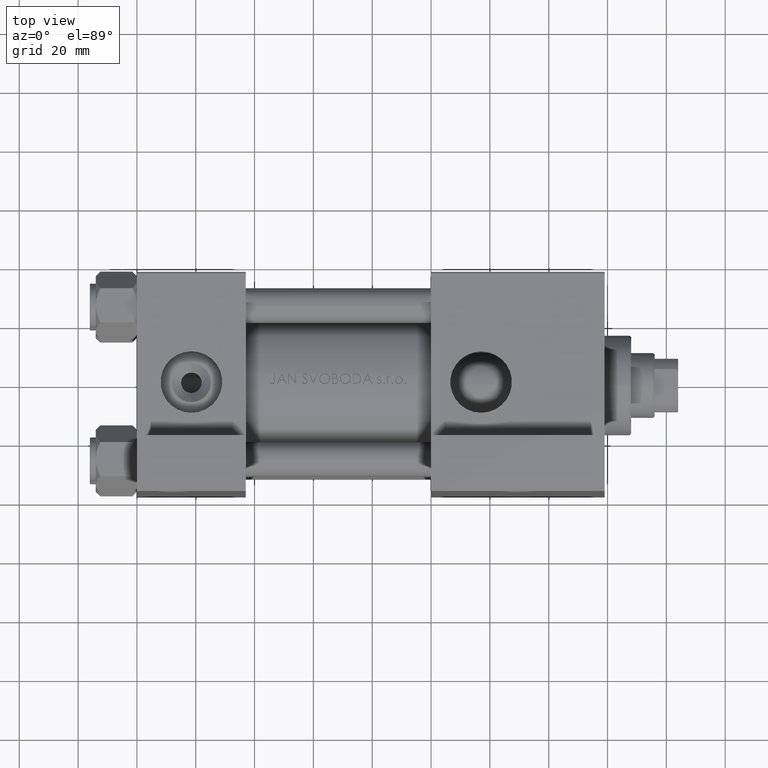
[diagram: clean part render]
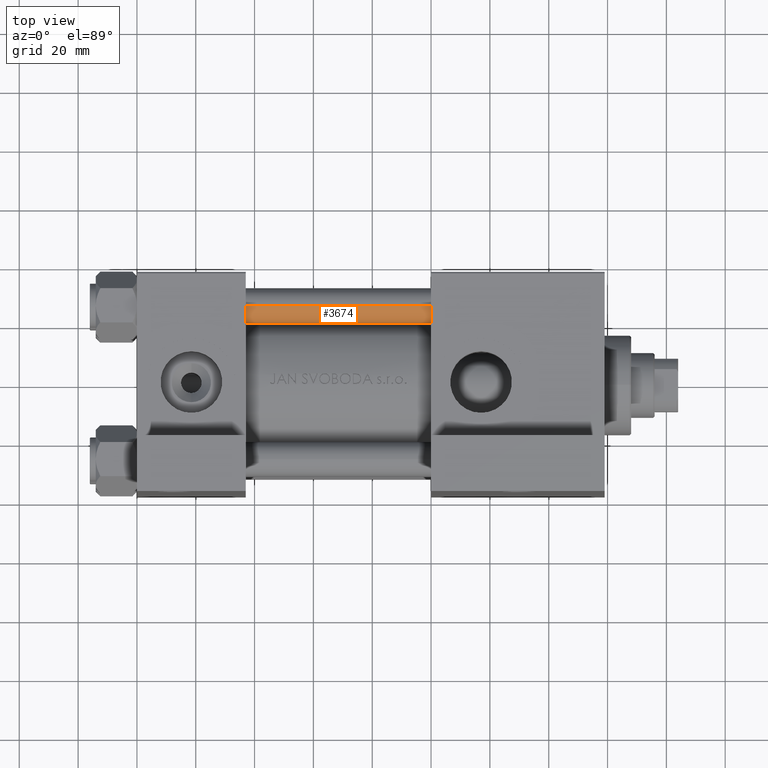
[diagram: same view with one face highlighted and labeled with its STEP entity id]
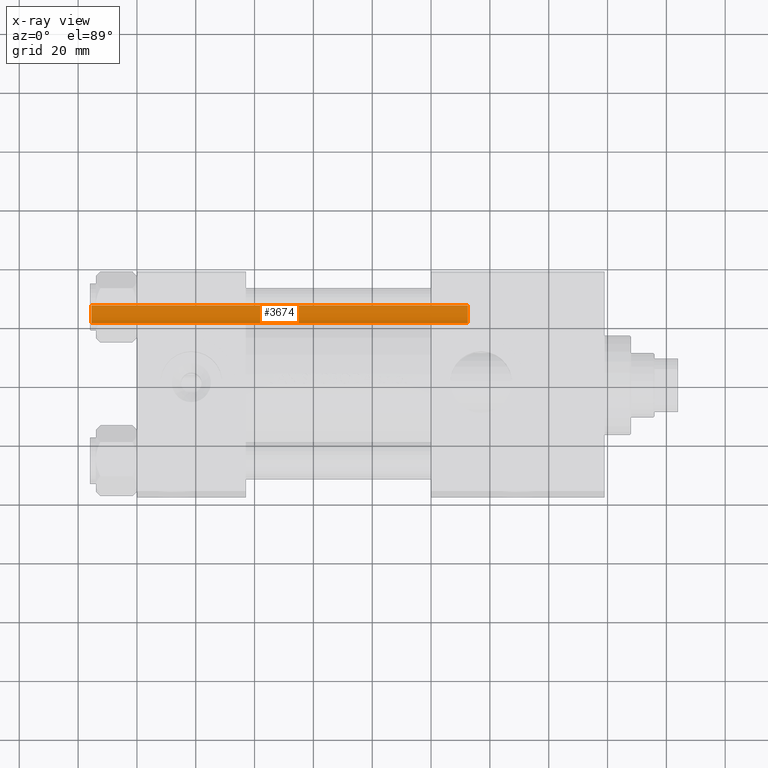
[diagram: x-ray of the same camera — body ghosted, the highlighted face saturated]
A machine part, top view. The second image highlights one B-rep face of the part: STEP entity #3674.
The next image is the same camera in x-ray: the body ghosted, the highlighted face saturated — about 0% of this face is hidden behind the body in this view.
In plain terms, the highlighted cylindrical surface (edge-blend (fillet) strip) has radius 6 mm, axis along (-1, -0, -0).
Its self-contained STEP definition (entity closure, byte-faithful):
#873 = VERTEX_POINT ( 'NONE', #19921 ) ;
#1471 = CIRCLE ( 'NONE', #5454, 6.000000000000000888 ) ;
#3674 = ADVANCED_FACE ( 'NONE', ( #36402 ), #17474, .T. ) ;
#4750 = VECTOR ( 'NONE', #35115, 1000.000000000000000 ) ;
#5249 = CARTESIAN_POINT ( 'NONE',  ( -6.000000000000000888, 0.000000000000000000, 128.4999999999999716 ) ) ;
#5454 = AXIS2_PLACEMENT_3D ( 'NONE', #39608, #12466, #31625 ) ;
#5720 = VERTEX_POINT ( 'NONE', #20709 ) ;
#6573 = VECTOR ( 'NONE', #9682, 1000.000000000000000 ) ;
#7339 = DIRECTION ( 'NONE',  ( 1.000000000000000000, 0.000000000000000000, 0.000000000000000000 ) ) ;
#9682 = DIRECTION ( 'NONE',  ( -0.000000000000000000, -0.000000000000000000, -1.000000000000000000 ) ) ;
#11014 = AXIS2_PLACEMENT_3D ( 'NONE', #26254, #41462, #7339 ) ;
#12466 = DIRECTION ( 'NONE',  ( -0.000000000000000000, -0.000000000000000000, 1.000000000000000000 ) ) ;
#13059 = ORIENTED_EDGE ( 'NONE', *, *, #27571, .F. ) ;
#13728 = DIRECTION ( 'NONE',  ( -1.000000000000000000, 0.000000000000000000, 0.000000000000000000 ) ) ;
#14023 = EDGE_CURVE ( 'NONE', #873, #20497, #1471, .T. ) ;
#15965 = ORIENTED_EDGE ( 'NONE', *, *, #20946, .T. ) ;
#17050 = AXIS2_PLACEMENT_3D ( 'NONE', #36885, #40397, #13728 ) ;
#17474 = CYLINDRICAL_SURFACE ( 'NONE', #17050, 6.000000000000000888 ) ;
#17894 = LINE ( 'NONE', #21389, #6573 ) ;
#19921 = CARTESIAN_POINT ( 'NONE',  ( -6.000000000000000888, 0.000000000000000000, 0.5000000000000004441 ) ) ;
#19937 = CARTESIAN_POINT ( 'NONE',  ( -6.000000000000000888, 0.000000000000000000, 129.0000000000000000 ) ) ;
#20497 = VERTEX_POINT ( 'NONE', #23810 ) ;
#20709 = CARTESIAN_POINT ( 'NONE',  ( 6.000000000000000888, 7.347880794884120722E-16, 128.4999999999999716 ) ) ;
#20899 = VERTEX_POINT ( 'NONE', #5249 ) ;
#20946 = EDGE_CURVE ( 'NONE', #20899, #873, #39120, .T. ) ;
#21389 = CARTESIAN_POINT ( 'NONE',  ( 6.000000000000000888, 7.347880794884120722E-16, 129.0000000000000000 ) ) ;
#23810 = CARTESIAN_POINT ( 'NONE',  ( 6.000000000000000888, 7.347880794884120722E-16, 0.5000000000000004441 ) ) ;
#26254 = CARTESIAN_POINT ( 'NONE',  ( 0.000000000000000000, 0.000000000000000000, 128.4999999999999716 ) ) ;
#27571 = EDGE_CURVE ( 'NONE', #5720, #20497, #17894, .T. ) ;
#29499 = EDGE_LOOP ( 'NONE', ( #13059, #36361, #15965, #44265 ) ) ;
#31625 = DIRECTION ( 'NONE',  ( 1.000000000000000000, 0.000000000000000000, 0.000000000000000000 ) ) ;
#32487 = CIRCLE ( 'NONE', #11014, 6.000000000000000888 ) ;
#35115 = DIRECTION ( 'NONE',  ( -0.000000000000000000, -0.000000000000000000, -1.000000000000000000 ) ) ;
#36361 = ORIENTED_EDGE ( 'NONE', *, *, #42592, .T. ) ;
#36402 = FACE_OUTER_BOUND ( 'NONE', #29499, .T. ) ;
#36885 = CARTESIAN_POINT ( 'NONE',  ( 0.000000000000000000, 0.000000000000000000, 129.0000000000000000 ) ) ;
#39120 = LINE ( 'NONE', #19937, #4750 ) ;
#39608 = CARTESIAN_POINT ( 'NONE',  ( 0.000000000000000000, 0.000000000000000000, 0.5000000000000004441 ) ) ;
#40397 = DIRECTION ( 'NONE',  ( -0.000000000000000000, -0.000000000000000000, -1.000000000000000000 ) ) ;
#41462 = DIRECTION ( 'NONE',  ( 0.000000000000000000, 0.000000000000000000, -1.000000000000000000 ) ) ;
#42592 = EDGE_CURVE ( 'NONE', #5720, #20899, #32487, .T. ) ;
#44265 = ORIENTED_EDGE ( 'NONE', *, *, #14023, .T. ) ;